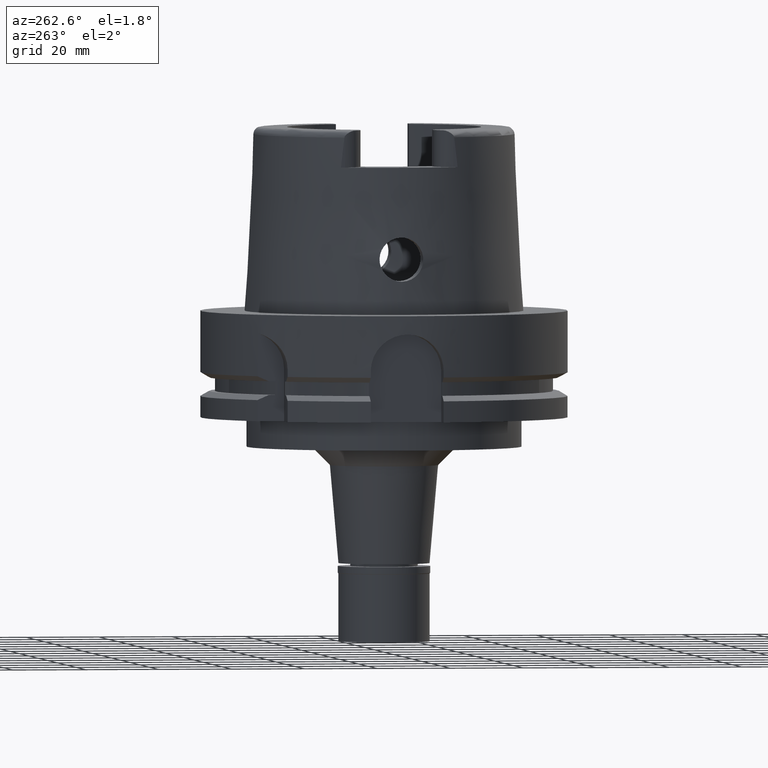
[diagram: clean part render]
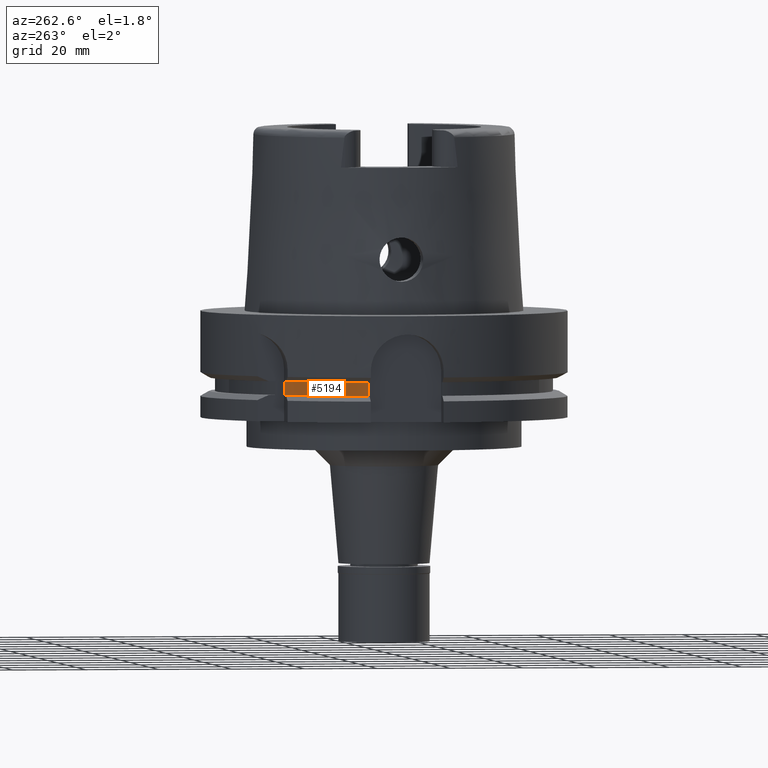
[diagram: same view with one face highlighted and labeled with its STEP entity id]
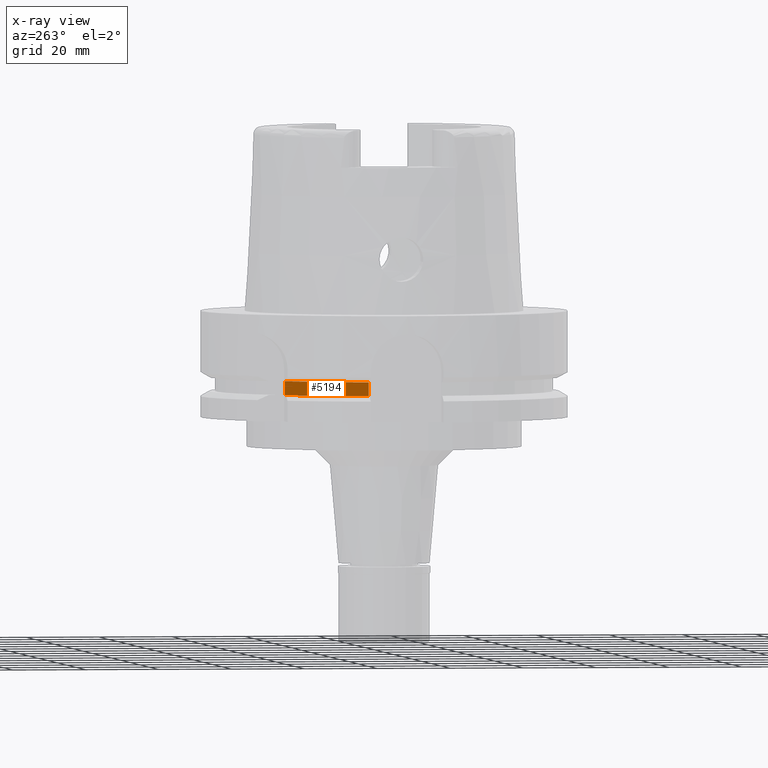
[diagram: x-ray of the same camera — body ghosted, the highlighted face saturated]
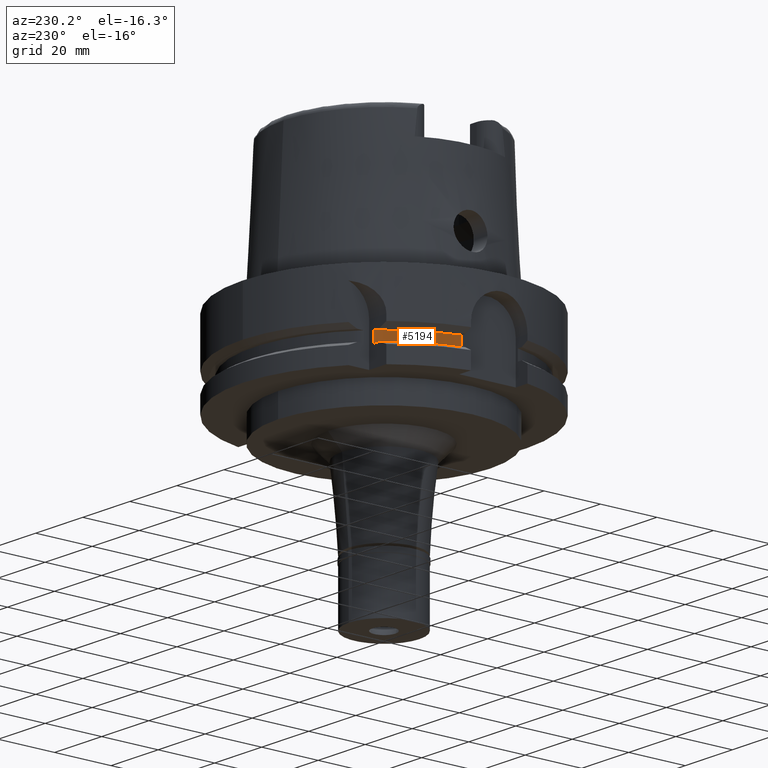
[diagram: same view with one face highlighted and labeled with its STEP entity id]
A machine part, auxiliary view. The second image highlights one B-rep face of the part: STEP entity #5194.
The next image is the same camera in x-ray: the body ghosted, the highlighted face saturated — about 0% of this face is hidden behind the body in this view.
A second angle (auxiliary view) of the same face is appended — the face is thin or edge-on in the first view.
In plain terms, the highlighted cylindrical surface (partial cylindrical patch) has radius 46 mm, axis along (0, 0, 1).
Its self-contained STEP definition (entity closure, byte-faithful):
#250 = CARTESIAN_POINT ( 'NONE',  ( -44.89988864128999779, 10.00000000000000000, -18.12500000000000000 ) ) ;
#369 = EDGE_CURVE ( 'NONE', #2623, #3364, #3961, .T. ) ;
#568 = DIRECTION ( 'NONE',  ( 0.0000000000000000000, 0.0000000000000000000, -1.000000000000000000 ) ) ;
#713 = CARTESIAN_POINT ( 'NONE',  ( -44.89988864128999779, 10.00000000000000000, -21.87500000000000000 ) ) ;
#787 = CARTESIAN_POINT ( 'NONE',  ( 0.0000000000000000000, 0.0000000000000000000, -21.87500000000000000 ) ) ;
#962 = EDGE_CURVE ( 'NONE', #3494, #1289, #3663, .T. ) ;
#984 = DIRECTION ( 'NONE',  ( 0.0000000000000000000, 1.000000000000000000, 0.0000000000000000000 ) ) ;
#996 = EDGE_CURVE ( 'NONE', #2623, #1289, #5159, .T. ) ;
#1031 = AXIS2_PLACEMENT_3D ( 'NONE', #5278, #568, #1865 ) ;
#1086 = CARTESIAN_POINT ( 'NONE',  ( -33.52238058372000040, 31.50000000000000000, -18.12500000000000000 ) ) ;
#1269 = ORIENTED_EDGE ( 'NONE', *, *, #996, .T. ) ;
#1289 = VERTEX_POINT ( 'NONE', #713 ) ;
#1333 = VECTOR ( 'NONE', #3558, 1000.000000000000000 ) ;
#1435 = DIRECTION ( 'NONE',  ( 0.0000000000000000000, 0.0000000000000000000, 1.000000000000000000 ) ) ;
#1487 = CARTESIAN_POINT ( 'NONE',  ( 0.0000000000000000000, 0.0000000000000000000, -90.48999999999999488 ) ) ;
#1778 = CARTESIAN_POINT ( 'NONE',  ( -33.52238058372000040, 31.50000000000000000, -21.87500000000000000 ) ) ;
#1794 = CYLINDRICAL_SURFACE ( 'NONE', #3602, 46.00000000000000000 ) ;
#1865 = DIRECTION ( 'NONE',  ( -0.9760845356801660655, 0.2173913043477924967, 0.0000000000000000000 ) ) ;
#2086 = ORIENTED_EDGE ( 'NONE', *, *, #2246, .T. ) ;
#2224 = EDGE_LOOP ( 'NONE', ( #1269, #2436, #2086, #3844 ) ) ;
#2246 = EDGE_CURVE ( 'NONE', #3494, #3364, #3764, .T. ) ;
#2436 = ORIENTED_EDGE ( 'NONE', *, *, #962, .F. ) ;
#2472 = DIRECTION ( 'NONE',  ( 0.0000000000000000000, 0.0000000000000000000, 1.000000000000000000 ) ) ;
#2623 = VERTEX_POINT ( 'NONE', #3384 ) ;
#2910 = DIRECTION ( 'NONE',  ( -0.7287474039939698667, 0.6847826086956719793, 0.0000000000000000000 ) ) ;
#3237 = DIRECTION ( 'NONE',  ( 0.0000000000000000000, 0.0000000000000000000, -1.000000000000000000 ) ) ;
#3250 = VECTOR ( 'NONE', #3237, 1000.000000000000000 ) ;
#3364 = VERTEX_POINT ( 'NONE', #1086 ) ;
#3384 = CARTESIAN_POINT ( 'NONE',  ( -33.52238058372000040, 31.50000000000000000, -21.87500000000000000 ) ) ;
#3494 = VERTEX_POINT ( 'NONE', #5572 ) ;
#3558 = DIRECTION ( 'NONE',  ( 0.0000000000000000000, 0.0000000000000000000, 1.000000000000000000 ) ) ;
#3602 = AXIS2_PLACEMENT_3D ( 'NONE', #1487, #1435, #984 ) ;
#3663 = LINE ( 'NONE', #250, #3250 ) ;
#3764 = CIRCLE ( 'NONE', #1031, 46.00000000000000000 ) ;
#3844 = ORIENTED_EDGE ( 'NONE', *, *, #369, .F. ) ;
#3961 = LINE ( 'NONE', #1778, #1333 ) ;
#4537 = AXIS2_PLACEMENT_3D ( 'NONE', #787, #2472, #2910 ) ;
#5159 = CIRCLE ( 'NONE', #4537, 46.00000000000000000 ) ;
#5194 = ADVANCED_FACE ( 'NONE', ( #5346 ), #1794, .T. ) ;
#5278 = CARTESIAN_POINT ( 'NONE',  ( 0.0000000000000000000, 0.0000000000000000000, -18.12500000000000000 ) ) ;
#5346 = FACE_OUTER_BOUND ( 'NONE', #2224, .T. ) ;
#5572 = CARTESIAN_POINT ( 'NONE',  ( -44.89988864128999779, 10.00000000000000000, -18.12500000000000000 ) ) ;